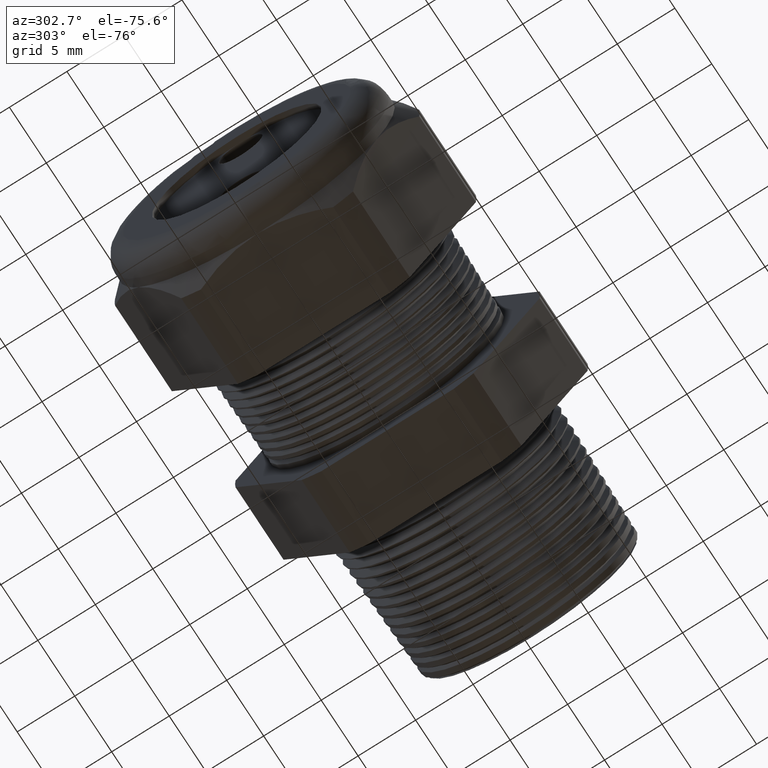
[diagram: clean part render]
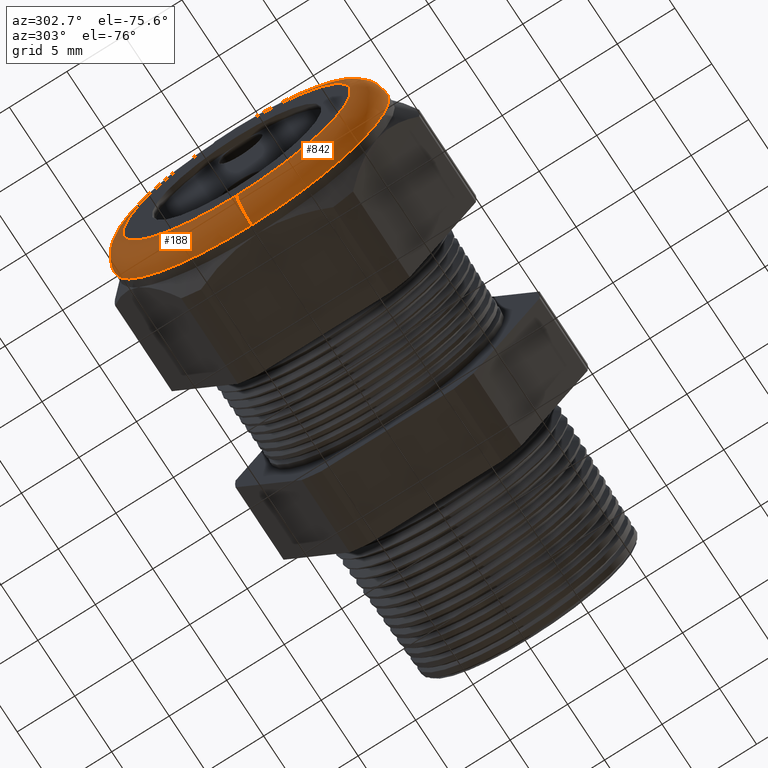
[diagram: same view with one multi-face feature highlighted, each face labeled with its STEP entity id]
A machine part, auxiliary view. The highlighted faces form ONE feature: a constant-radius fillet chain: 2 tangent blend faces with common blend radius 2.032 mm. The faces share edges in the B-rep.
Their STEP definitions:
[1] entity #188 (Torus):
#172 = EDGE_CURVE ( 'NONE', #183, #178, #2170, .T. ) ;
#173 = ORIENTED_EDGE ( 'NONE', *, *, #172, .F. ) ;
#177 = EDGE_CURVE ( 'NONE', #178, #181, #2160, .T. ) ;
#178 = VERTEX_POINT ( 'NONE', #2218 ) ;
#179 = EDGE_CURVE ( 'NONE', #184, #181, #2217, .T. ) ;
#180 = ORIENTED_EDGE ( 'NONE', *, *, #179, .T. ) ;
#181 = VERTEX_POINT ( 'NONE', #2212 ) ;
#182 = ORIENTED_EDGE ( 'NONE', *, *, #177, .F. ) ;
#183 = VERTEX_POINT ( 'NONE', #2211 ) ;
#184 = VERTEX_POINT ( 'NONE', #2210 ) ;
#185 = EDGE_CURVE ( 'NONE', #184, #183, #2208, .T. ) ;
#186 = EDGE_LOOP ( 'NONE', ( #187, #180, #182, #173 ) ) ;
#187 = ORIENTED_EDGE ( 'NONE', *, *, #185, .F. ) ;
#188 = ADVANCED_FACE ( 'NONE', ( #2209 ), #2202, .T. ) ;
#2157 = DIRECTION ( 'NONE',  ( -1.000000000000000000, 0.0000000000000000000, 0.0000000000000000000 ) ) ;
#2158 = CARTESIAN_POINT ( 'NONE',  ( -1.370000000000000300, 0.0000000000000000000, 0.0000000000000000000 ) ) ;
#2159 = AXIS2_PLACEMENT_3D ( 'NONE', #2158, #2157, #2219 ) ;
#2160 = CIRCLE ( 'NONE', #2159, 0.3899999999999999600 ) ;
#2166 = DIRECTION ( 'NONE',  ( 0.0000000000000000000, 0.0000000000000000000, -1.000000000000000000 ) ) ;
#2167 = DIRECTION ( 'NONE',  ( 0.0000000000000000000, -1.000000000000000000, 0.0000000000000000000 ) ) ;
#2168 = CARTESIAN_POINT ( 'NONE',  ( -1.290000000000000500, 0.0000000000000000000, 0.3899999999999999600 ) ) ;
#2169 = AXIS2_PLACEMENT_3D ( 'NONE', #2168, #2167, #2166 ) ;
#2170 = CIRCLE ( 'NONE', #2169, 0.07999999999999996000 ) ;
#2199 = DIRECTION ( 'NONE',  ( 0.0000000000000000000, 0.0000000000000000000, 1.000000000000000000 ) ) ;
#2200 = DIRECTION ( 'NONE',  ( -1.000000000000000000, 0.0000000000000000000, 0.0000000000000000000 ) ) ;
#2201 = AXIS2_PLACEMENT_3D ( 'NONE', #2203, #2200, #2199 ) ;
#2202 = TOROIDAL_SURFACE ( 'NONE', #2201, 0.3899999999999999600, 0.08000000000000000200 ) ;
#2203 = CARTESIAN_POINT ( 'NONE',  ( -1.290000000000000500, 0.0000000000000000000, 0.0000000000000000000 ) ) ;
#2204 = DIRECTION ( 'NONE',  ( 0.0000000000000000000, 0.0000000000000000000, 1.000000000000000000 ) ) ;
#2205 = DIRECTION ( 'NONE',  ( 1.000000000000000000, 0.0000000000000000000, 0.0000000000000000000 ) ) ;
#2206 = CARTESIAN_POINT ( 'NONE',  ( -1.290000000000000500, 0.0000000000000000000, 0.0000000000000000000 ) ) ;
#2207 = AXIS2_PLACEMENT_3D ( 'NONE', #2206, #2205, #2204 ) ;
#2208 = CIRCLE ( 'NONE', #2207, 0.4699999999999999200 ) ;
#2209 = FACE_OUTER_BOUND ( 'NONE', #186, .T. ) ;
#2210 = CARTESIAN_POINT ( 'NONE',  ( -1.290000000000000500, 0.0000000000000000000, -0.4699999999999999200 ) ) ;
#2211 = CARTESIAN_POINT ( 'NONE',  ( -1.290000000000000500, 5.755839955992558400E-017, 0.4699999999999999200 ) ) ;
#2212 = CARTESIAN_POINT ( 'NONE',  ( -1.370000000000000300, 5.265981236333617600E-017, -0.3899999999999999600 ) ) ;
#2213 = DIRECTION ( 'NONE',  ( 0.0000000000000000000, -1.224646799147353900E-016, 1.000000000000000000 ) ) ;
#2214 = DIRECTION ( 'NONE',  ( 0.0000000000000000000, 1.000000000000000000, 1.224646799147353200E-016 ) ) ;
#2215 = CARTESIAN_POINT ( 'NONE',  ( -1.290000000000000500, 4.776122516674676800E-017, -0.3899999999999999600 ) ) ;
#2216 = AXIS2_PLACEMENT_3D ( 'NONE', #2215, #2214, #2213 ) ;
#2217 = CIRCLE ( 'NONE', #2216, 0.07999999999999996000 ) ;
#2218 = CARTESIAN_POINT ( 'NONE',  ( -1.370000000000000300, 0.0000000000000000000, 0.3899999999999999600 ) ) ;
#2219 = DIRECTION ( 'NONE',  ( 0.0000000000000000000, 0.0000000000000000000, 1.000000000000000000 ) ) ;
[2] entity #842 (Torus):
#172 = EDGE_CURVE ( 'NONE', #183, #178, #2170, .T. ) ;
#178 = VERTEX_POINT ( 'NONE', #2218 ) ;
#179 = EDGE_CURVE ( 'NONE', #184, #181, #2217, .T. ) ;
#181 = VERTEX_POINT ( 'NONE', #2212 ) ;
#183 = VERTEX_POINT ( 'NONE', #2211 ) ;
#184 = VERTEX_POINT ( 'NONE', #2210 ) ;
#704 = EDGE_CURVE ( 'NONE', #181, #178, #3260, .T. ) ;
#712 = EDGE_CURVE ( 'NONE', #183, #184, #3248, .T. ) ;
#842 = ADVANCED_FACE ( 'NONE', ( #3530 ), #3529, .T. ) ;
#843 = EDGE_LOOP ( 'NONE', ( #844, #845, #846, #847 ) ) ;
#844 = ORIENTED_EDGE ( 'NONE', *, *, #179, .F. ) ;
#845 = ORIENTED_EDGE ( 'NONE', *, *, #712, .F. ) ;
#846 = ORIENTED_EDGE ( 'NONE', *, *, #172, .T. ) ;
#847 = ORIENTED_EDGE ( 'NONE', *, *, #704, .F. ) ;
#2166 = DIRECTION ( 'NONE',  ( 0.0000000000000000000, 0.0000000000000000000, -1.000000000000000000 ) ) ;
#2167 = DIRECTION ( 'NONE',  ( 0.0000000000000000000, -1.000000000000000000, 0.0000000000000000000 ) ) ;
#2168 = CARTESIAN_POINT ( 'NONE',  ( -1.290000000000000500, 0.0000000000000000000, 0.3899999999999999600 ) ) ;
#2169 = AXIS2_PLACEMENT_3D ( 'NONE', #2168, #2167, #2166 ) ;
#2170 = CIRCLE ( 'NONE', #2169, 0.07999999999999996000 ) ;
#2210 = CARTESIAN_POINT ( 'NONE',  ( -1.290000000000000500, 0.0000000000000000000, -0.4699999999999999200 ) ) ;
#2211 = CARTESIAN_POINT ( 'NONE',  ( -1.290000000000000500, 5.755839955992558400E-017, 0.4699999999999999200 ) ) ;
#2212 = CARTESIAN_POINT ( 'NONE',  ( -1.370000000000000300, 5.265981236333617600E-017, -0.3899999999999999600 ) ) ;
#2213 = DIRECTION ( 'NONE',  ( 0.0000000000000000000, -1.224646799147353900E-016, 1.000000000000000000 ) ) ;
#2214 = DIRECTION ( 'NONE',  ( 0.0000000000000000000, 1.000000000000000000, 1.224646799147353200E-016 ) ) ;
#2215 = CARTESIAN_POINT ( 'NONE',  ( -1.290000000000000500, 4.776122516674676800E-017, -0.3899999999999999600 ) ) ;
#2216 = AXIS2_PLACEMENT_3D ( 'NONE', #2215, #2214, #2213 ) ;
#2217 = CIRCLE ( 'NONE', #2216, 0.07999999999999996000 ) ;
#2218 = CARTESIAN_POINT ( 'NONE',  ( -1.370000000000000300, 0.0000000000000000000, 0.3899999999999999600 ) ) ;
#3245 = DIRECTION ( 'NONE',  ( 0.0000000000000000000, 0.0000000000000000000, 1.000000000000000000 ) ) ;
#3246 = DIRECTION ( 'NONE',  ( 1.000000000000000000, 0.0000000000000000000, 0.0000000000000000000 ) ) ;
#3247 = AXIS2_PLACEMENT_3D ( 'NONE', #3253, #3246, #3245 ) ;
#3248 = CIRCLE ( 'NONE', #3247, 0.4699999999999999200 ) ;
#3253 = CARTESIAN_POINT ( 'NONE',  ( -1.290000000000000500, 0.0000000000000000000, 0.0000000000000000000 ) ) ;
#3256 = DIRECTION ( 'NONE',  ( 0.0000000000000000000, 0.0000000000000000000, 1.000000000000000000 ) ) ;
#3257 = DIRECTION ( 'NONE',  ( -1.000000000000000000, 0.0000000000000000000, 0.0000000000000000000 ) ) ;
#3258 = CARTESIAN_POINT ( 'NONE',  ( -1.370000000000000300, 0.0000000000000000000, 0.0000000000000000000 ) ) ;
#3259 = AXIS2_PLACEMENT_3D ( 'NONE', #3258, #3257, #3256 ) ;
#3260 = CIRCLE ( 'NONE', #3259, 0.3899999999999999600 ) ;
#3525 = DIRECTION ( 'NONE',  ( 0.0000000000000000000, 0.0000000000000000000, 1.000000000000000000 ) ) ;
#3526 = DIRECTION ( 'NONE',  ( -1.000000000000000000, 0.0000000000000000000, 0.0000000000000000000 ) ) ;
#3527 = CARTESIAN_POINT ( 'NONE',  ( -1.290000000000000500, 0.0000000000000000000, 0.0000000000000000000 ) ) ;
#3528 = AXIS2_PLACEMENT_3D ( 'NONE', #3527, #3526, #3525 ) ;
#3529 = TOROIDAL_SURFACE ( 'NONE', #3528, 0.3899999999999999600, 0.08000000000000000200 ) ;
#3530 = FACE_OUTER_BOUND ( 'NONE', #843, .T. ) ;